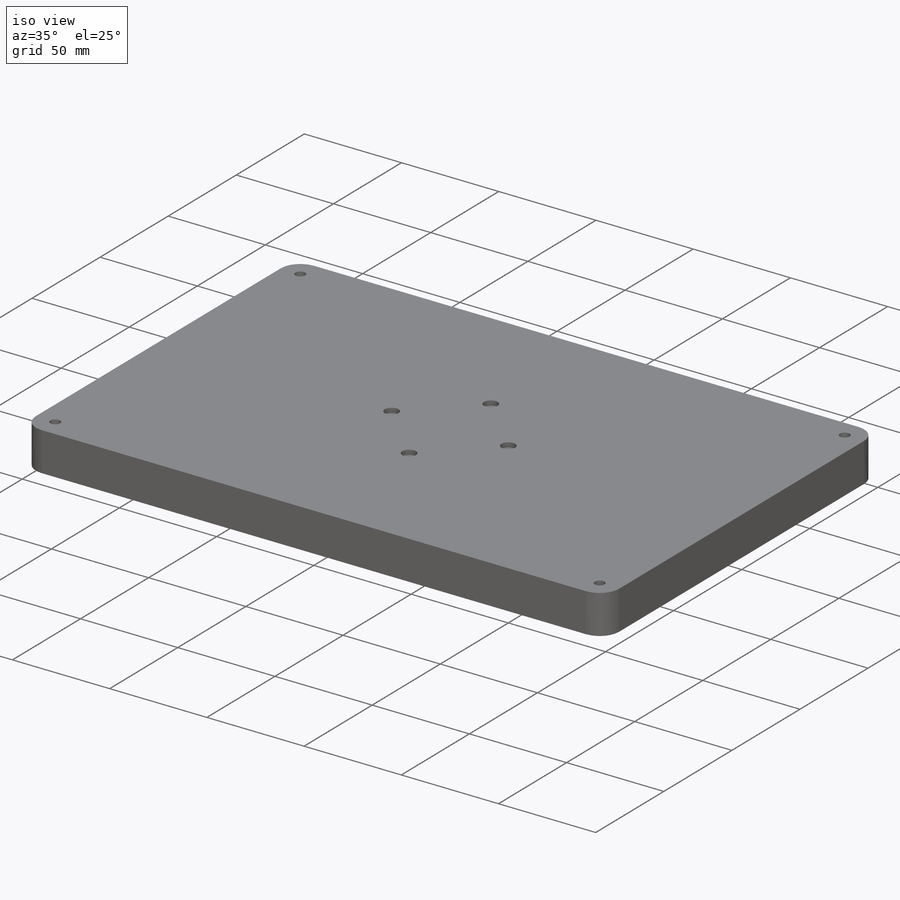
[diagram: iso view]
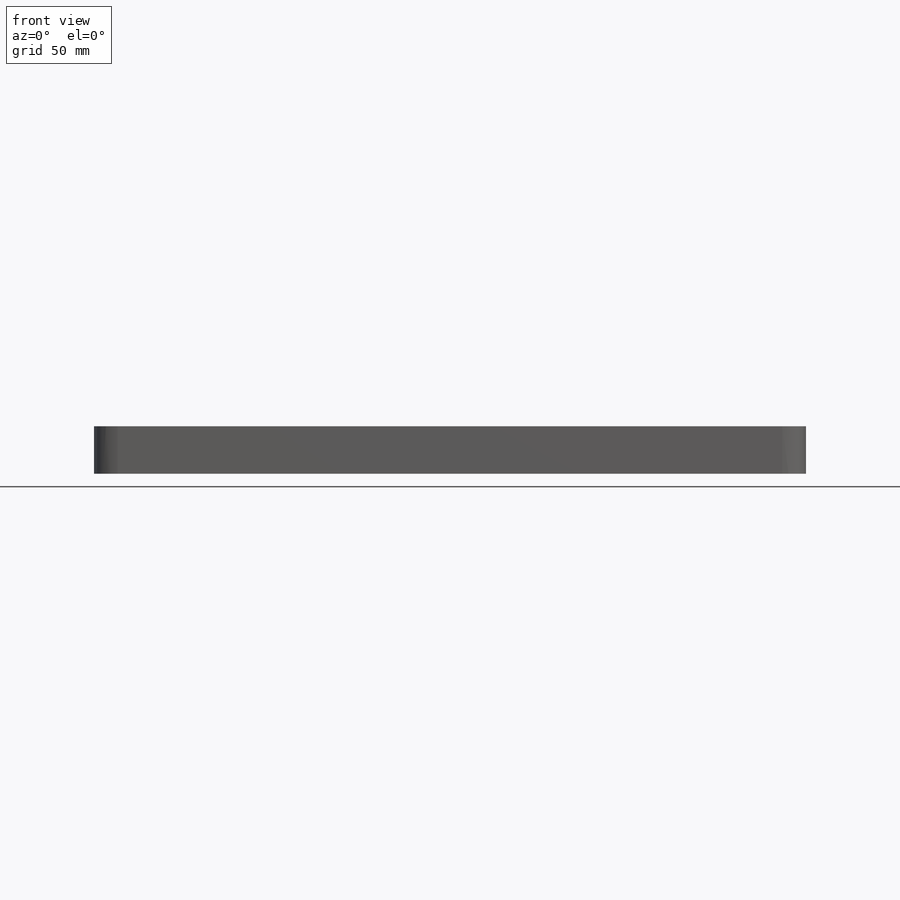
[diagram: front view]
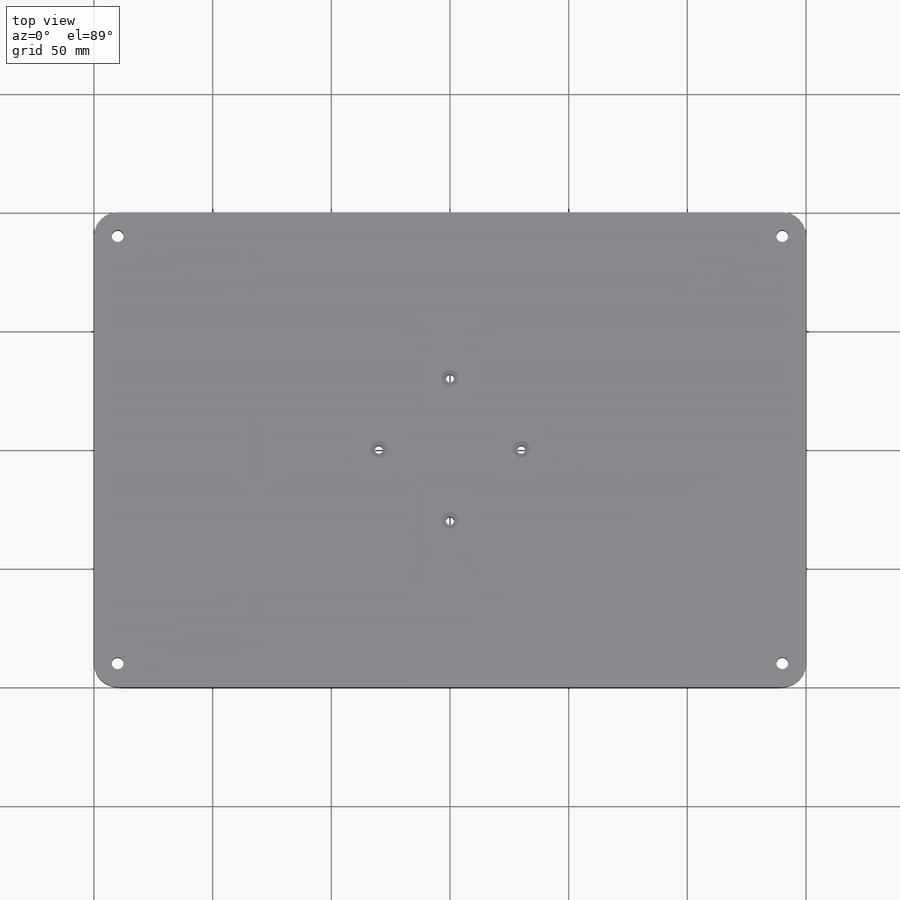
[diagram: top view]
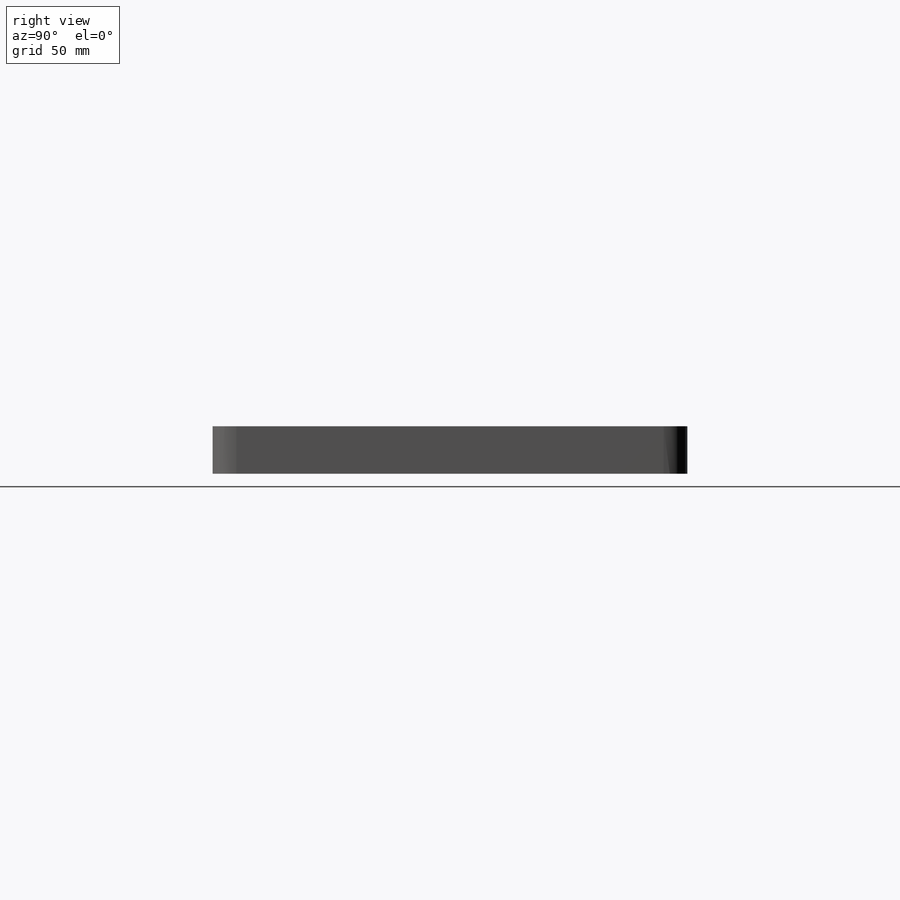
[diagram: right view]
SOLIDWORKS PART (.sldprt)
format: sldprt  version: not decoded by parser v0  size: 228,864 bytes
history: native  units: mm
features: sketch x7, hole x3, material x1, extrude x1, fillet x1 (+11 scaffold rows collapsed)
feature tree (24):
  scaffold x11  (default folders/planes/origin — collapsed)
  material  "Material <not specified>"
  sketch  "Sketch1"  dims[D1=200.0mm D2=300.0mm]
  extrude  "Boss-Extrude1"  Depth=20mm
  fillet  "Fillet1"  Radius=10mm
  hole  "CBORE for M3 Pan Head Machine Screw1"  Diameter=3.4mm Depth=20mm
  sketch  "Sketch4"  dims[D1=~29.474193mm]
  sketch  "Sketch3"  dims[hole-wizard template sketch: 43 standard entries collapsed; hole parameters kept: c12.C'Bore Dia.=7.0mm c12.C'Bore Depth=2.4mm]
  hole  "Ø5.0 (5) Diameter Hole1"  Diameter=5mm Depth=20mm
  sketch  "Sketch7"
  sketch  "Sketch5"  dims[hole-wizard template sketch: 60 standard entries collapsed; hole parameters kept: c18.Thru Hole Depth=20.0mm]
  hole  "Ø2.0 (2) Diameter Hole1"  Diameter=2mm Depth=10mm
  sketch  "Sketch10"  dims[D1=52.4mm D2=52.4mm]
  sketch  "Sketch8"  dims[hole-wizard template sketch: 50 standard entries collapsed; hole parameters above]
decode coverage: 11 of 12 modeling features carry decoded parameters
note: ~ marks probable driven/reference dimensions
note: suppression state not decoded; provenance and decode notes live in map.json
